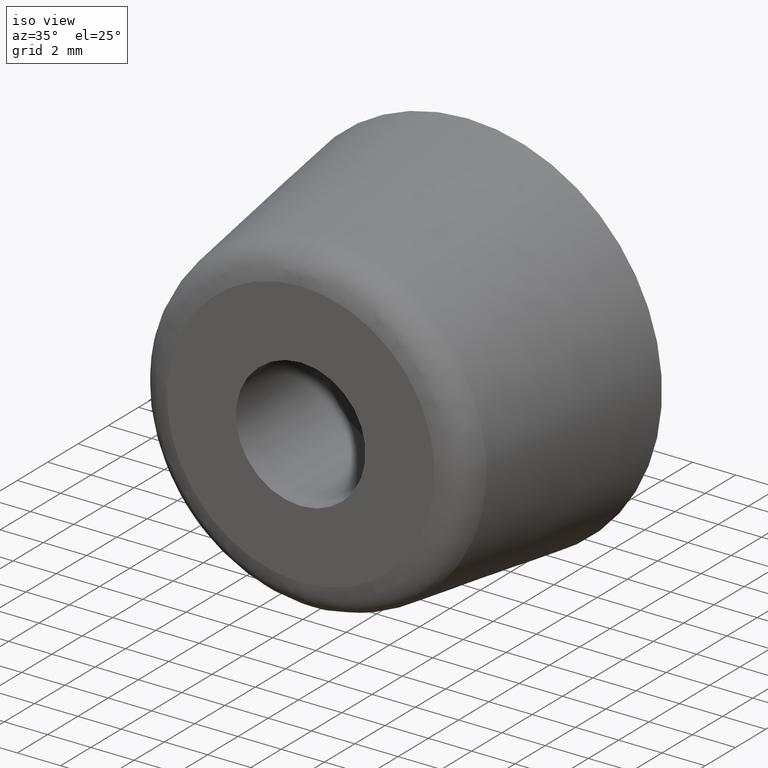
[diagram: clean part render]
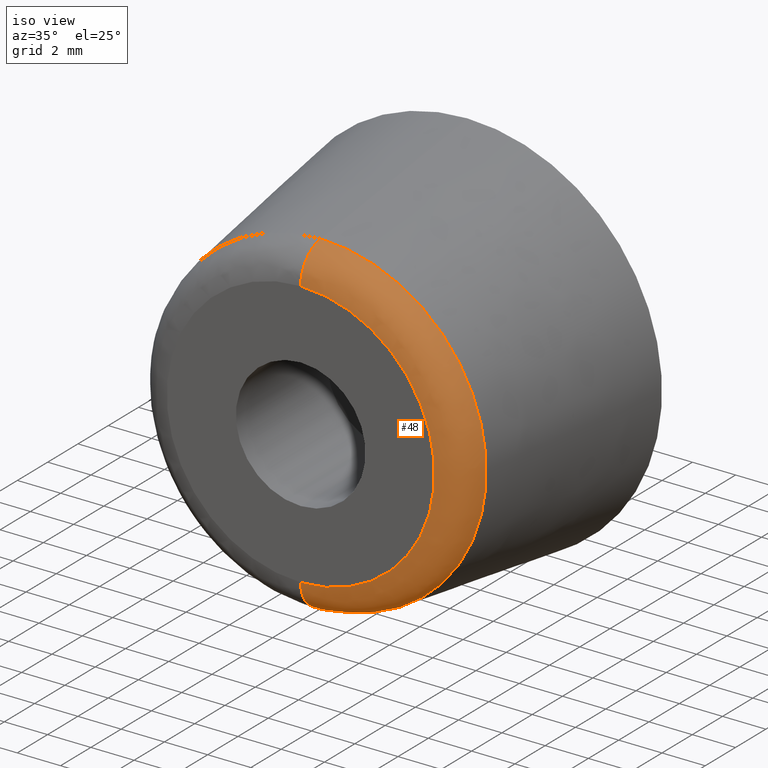
[diagram: same view with one face highlighted and labeled with its STEP entity id]
A machine part, iso view. The second image highlights one B-rep face of the part: STEP entity #48.
In plain terms, the highlighted face is a freeform B-spline surface patch.
Its self-contained STEP definition (entity closure, byte-faithful):
#48=ADVANCED_FACE('',(#135),#134,.T.);
#134=( BOUNDED_SURFACE() B_SPLINE_SURFACE( 2,2,((#228,#229,#230,#231,#232),(#233,#234,#235,#236,#237),(#238,#239,#240,#241,#242),(#243,#244,#245,#246,#247),(#248,#249,#250,#251,#252)), .UNSPECIFIED.,.F.,.F.,.F.) B_SPLINE_SURFACE_WITH_KNOTS((3,2,3),(3,2,3),(0.00000000000E+00,5.00000000000E-01,1.00000000000E+00),(0.00000000000E+00,5.00000000000E-01,1.00000000000E+00), .UNSPECIFIED. ) GEOMETRIC_REPRESENTATION_ITEM() RATIONAL_B_SPLINE_SURFACE(((1.00000000000E+00,7.53363526039E-01,1.00000000000E+00,7.53363526039E-01,1.00000000000E+00),(7.07106781187E-01,5.32708457961E-01,7.07106781187E-01,5.32708457961E-01,7.07106781187E-01),(1.00000000000E+00,7.53363526039E-01,1.00000000000E+00,7.53363526039E-01,1.00000000000E+00),(7.07106781187E-01,5.32708457961E-01,7.07106781187E-01,5.32708457961E-01,7.07106781187E-01),(1.00000000000E+00,7.53363526039E-01,1.00000000000E+00,7.53363526039E-01,1.00000000000E+00))) REPRESENTATION_ITEM('') SURFACE() );
#135=FACE_OUTER_BOUND('',#253,.T.);
#228=CARTESIAN_POINT('',(3.55618002080E-14,-9.70266980710E+00,-7.67690866267E+00));
#229=CARTESIAN_POINT('',(3.55618009235E-14,-1.10000000000E+01,-7.50000000000E+00));
#230=CARTESIAN_POINT('',(3.55618062192E-14,-1.10000000000E+01,-6.19066341060E+00));
#231=CARTESIAN_POINT('',(3.55618115148E-14,-1.10000000000E+01,-4.88132682120E+00));
#232=CARTESIAN_POINT('',(3.55618122304E-14,-9.70266980710E+00,-4.70441815854E+00));
#233=CARTESIAN_POINT('',(7.67690866267E+00,-9.70266980710E+00,-7.67690866267E+00));
#234=CARTESIAN_POINT('',(7.50000000000E+00,-1.10000000000E+01,-7.50000000000E+00));
#235=CARTESIAN_POINT('',(6.19066341060E+00,-1.10000000000E+01,-6.19066341060E+00));
#236=CARTESIAN_POINT('',(4.88132682120E+00,-1.10000000000E+01,-4.88132682120E+00));
#237=CARTESIAN_POINT('',(4.70441815854E+00,-9.70266980710E+00,-4.70441815854E+00));
#238=CARTESIAN_POINT('',(7.67690866267E+00,-9.70266980710E+00,-4.70106130561E-16));
#239=CARTESIAN_POINT('',(7.50000000000E+00,-1.10000000000E+01,-4.59272883674E-16));
#240=CARTESIAN_POINT('',(6.19066341060E+00,-1.10000000000E+01,-3.79093844859E-16));
#241=CARTESIAN_POINT('',(4.88132682120E+00,-1.10000000000E+01,-2.98914806044E-16));
#242=CARTESIAN_POINT('',(4.70441815854E+00,-9.70266980710E+00,-2.88081559157E-16));
#243=CARTESIAN_POINT('',(7.67690866267E+00,-9.70266980710E+00,7.67690866267E+00));
#244=CARTESIAN_POINT('',(7.50000000000E+00,-1.10000000000E+01,7.50000000000E+00));
#245=CARTESIAN_POINT('',(6.19066341060E+00,-1.10000000000E+01,6.19066341060E+00));
#246=CARTESIAN_POINT('',(4.88132682120E+00,-1.10000000000E+01,4.88132682120E+00));
#247=CARTESIAN_POINT('',(4.70441815854E+00,-9.70266980710E+00,4.70441815854E+00));
#248=CARTESIAN_POINT('',(3.65020124691E-14,-9.70266980710E+00,7.67690866267E+00));
#249=CARTESIAN_POINT('',(3.64803466909E-14,-1.10000000000E+01,7.50000000000E+00));
#250=CARTESIAN_POINT('',(3.63199939089E-14,-1.10000000000E+01,6.19066341060E+00));
#251=CARTESIAN_POINT('',(3.61596411269E-14,-1.10000000000E+01,4.88132682120E+00));
#252=CARTESIAN_POINT('',(3.61379753487E-14,-9.70266980710E+00,4.70441815854E+00));
#253=EDGE_LOOP('',(#308,#309,#310,#311));
#308=ORIENTED_EDGE('',*,*,#339,.T.);
#309=ORIENTED_EDGE('',*,*,#336,.T.);
#310=ORIENTED_EDGE('',*,*,#324,.F.);
#311=ORIENTED_EDGE('',*,*,#338,.F.);
#324=EDGE_CURVE('',#370,#371,#372,.T.);
#336=EDGE_CURVE('',#450,#371,#451,.T.);
#338=EDGE_CURVE('',#457,#370,#464,.T.);
#339=EDGE_CURVE('',#457,#450,#470,.T.);
#370=VERTEX_POINT('',#508);
#371=VERTEX_POINT('',#509);
#372=CIRCLE('',#513,6.19066341060E+00);
#450=VERTEX_POINT('',#556);
#451=(BOUNDED_CURVE() B_SPLINE_CURVE(2,(#557,#558,#559),.UNSPECIFIED.,.F.,.F.) B_SPLINE_CURVE_WITH_KNOTS((3,3),(0.00000000000E+00,5.00000000000E-01),.UNSPECIFIED.) CURVE() GEOMETRIC_REPRESENTATION_ITEM() RATIONAL_B_SPLINE_CURVE((1.00000000000E+00,7.53363526039E-01,1.00000000000E+00)) REPRESENTATION_ITEM('') );
#457=VERTEX_POINT('',#560);
#464=(BOUNDED_CURVE() B_SPLINE_CURVE(3,(#565,#566,#567,#568,#569),.UNSPECIFIED.,.F.,.F.) B_SPLINE_CURVE_WITH_KNOTS((4,1,4),(0.00000000000E+00,2.50000002807E-01,5.00000004982E-01),.UNSPECIFIED.) CURVE() GEOMETRIC_REPRESENTATION_ITEM() RATIONAL_B_SPLINE_CURVE((1.00000000000E+00,1.00000000000E+00,1.00000000000E+00,1.00000000000E+00,1.00000000000E+00)) REPRESENTATION_ITEM('') );
#470=CIRCLE('',#573,7.67690866267E+00);
#508=CARTESIAN_POINT('',(3.55271367880E-14,-1.10000000000E+01,-6.19066341060E+00));
#509=CARTESIAN_POINT('',(3.52310773148E-14,-1.10000000000E+01,6.19066341060E+00));
#510=CARTESIAN_POINT('',(3.55271367880E-14,-1.10000000000E+01,0.00000000000E+00));
#511=DIRECTION('',(0.00000000000E+00,-1.00000000000E+00,-0.00000000000E+00));
#512=DIRECTION('',(-1.22460635382E-16,0.00000000000E+00,-1.00000000000E+00));
#513=AXIS2_PLACEMENT_3D('',#510,#511,#512);
#556=CARTESIAN_POINT('',(3.64153152077E-14,-9.70266980710E+00,7.67690866267E+00));
#557=CARTESIAN_POINT('',(3.46217121449E-14,-9.70266980710E+00,7.67690866267E+00));
#558=CARTESIAN_POINT('',(3.46433764922E-14,-1.10000000000E+01,7.50000000000E+00));
#559=CARTESIAN_POINT('',(3.48037186828E-14,-1.10000000000E+01,6.19066341060E+00));
#560=CARTESIAN_POINT('',(3.55271367880E-14,-9.70266980710E+00,-7.67690866267E+00));
#565=CARTESIAN_POINT('',(3.67113746809E-14,-9.70266980710E+00,-7.67690866267E+00));
#566=CARTESIAN_POINT('',(3.65593392417E-14,-1.00557707688E+01,-7.63108971428E+00));
#567=CARTESIAN_POINT('',(3.63240075825E-14,-1.07310503019E+01,-7.26523619798E+00));
#568=CARTESIAN_POINT('',(3.63433326734E-14,-1.10023098108E+01,-6.54671722017E+00));
#569=CARTESIAN_POINT('',(3.64153152067E-14,-1.10000000000E+01,-6.19066339095E+00));
#570=CARTESIAN_POINT('',(3.55271367880E-14,-9.70266980710E+00,0.00000000000E+00));
#571=DIRECTION('',(0.00000000000E+00,-1.00000000000E+00,-0.00000000000E+00));
#572=DIRECTION('',(-1.22460635382E-16,0.00000000000E+00,-1.00000000000E+00));
#573=AXIS2_PLACEMENT_3D('',#570,#571,#572);